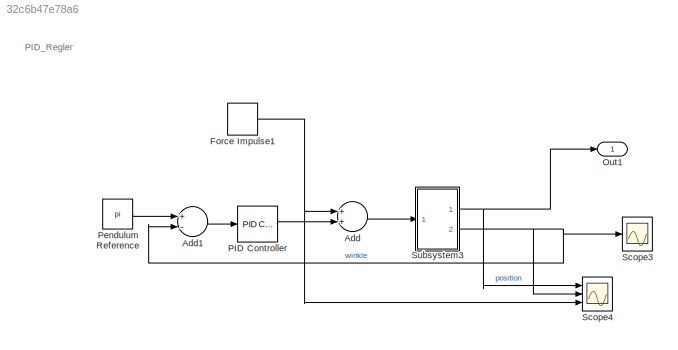
MODEL slx_32c6b47e78a6
KIND model
CONFIG AbsTol = auto
CONFIG EnableMultiTasking = off
CONFIG FixedStep = auto
CONFIG MaxStep = auto
CONFIG MinStep = auto
CONFIG RelTol = 1e-3
CONFIG SampleTimeConstraint = Unconstrained
CONFIG Solver = VariableStepAuto
CONFIG SolverName = VariableStepAuto
CONFIG StartTime = 0.0
CONFIG StopTime = 10.0
BLOCK [Sum] Add
  InputSameDT = off
  OutDataTypeStr = Inherit: Inherit via internal rule
  Ports = [2, 1]
  SaturateOnIntegerOverflow = off
BLOCK [Sum] Add1
  InputSameDT = off
  Inputs = +-
  OutDataTypeStr = Inherit: Inherit via internal rule
  Ports = [2, 1]
  SaturateOnIntegerOverflow = off
BLOCK [DiscretePulseGenerator] Force Impulse1
  Amplitude = 10
  Period = 100
  PhaseDelay = 3
  Ports = [0, 1]
  PulseType = Time based
  PulseWidth = 0.01
BLOCK [Outport] Out1
  IconDisplay = Port number
BLOCK [Reference] PID Controller  REF=simulink/Continuous/PID Controller
  Ports = [1, 1]
  SourceBlock = simulink/Continuous/PID Controller
  SourceProductBaseCode = SL
  SourceProductName = Simulink
  SourceType = PID 1dof
BLOCK [Constant] Pendulum Reference
  Value = pi
BLOCK [Scope] Scope3
  Floating = off
  NumInputPorts = 1
  Ports = [1]
  ScopeSpecificationString = Simulink.scopes.TimeScopeBlockCfg('CurrentConfiguration', extmgr.ConfigurationSet(extmgr.Configuration('Core','General UI',true),extmgr.Configuration('Core','Source UI',true),extmgr.Configuration('Sources','WiredSimulink',true,'DataLoggingVariableName','ScopeData1'),extmgr.Configuration('Visuals','Time Domain',true,'SerializedDisplays',{struct('MinYLimReal','3.14082','MaxYLimReal','3.14847','YLabe...<+1438ch>
BLOCK [Scope] Scope4
  Floating = off
  NumInputPorts = 3
  Ports = [3]
  ScopeSpecificationString = Simulink.scopes.TimeScopeBlockCfg('CurrentConfiguration', extmgr.ConfigurationSet(extmgr.Configuration('Core','General UI',true),extmgr.Configuration('Core','Source UI',true),extmgr.Configuration('Sources','WiredSimulink',true),extmgr.Configuration('Visuals','Time Domain',true,'SerializedDisplays',{struct('MinYLimReal','-15.53182','MaxYLimReal','139.78637','YLabelReal','','MinYLimMag','0.00000','M...<+2885ch>
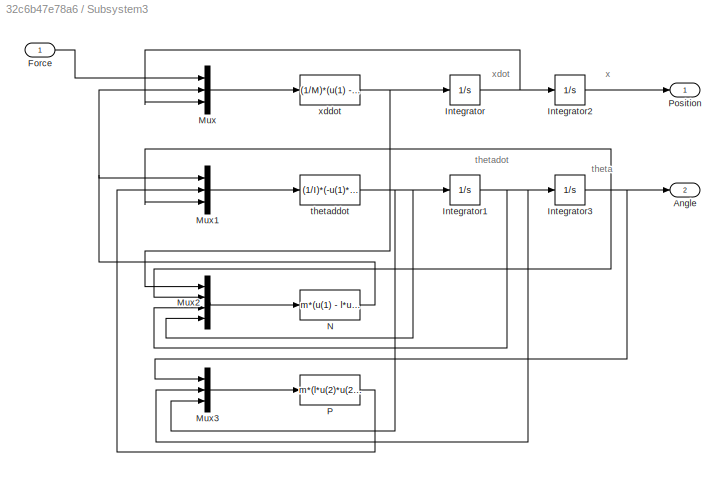
BLOCK [SubSystem] Subsystem3
  Ports = [1, 2]
  RequestExecContextInheritance = off
BLOCK [Outport] Subsystem3/Angle
  IconDisplay = Port number
  Port = 2
BLOCK [Inport] Subsystem3/Force
  IconDisplay = Port number
BLOCK [Integrator] Subsystem3/Integrator
  ContinuousStateAttributes = 'xdot'
  Ports = [1, 1]
BLOCK [Integrator] Subsystem3/Integrator1
  ContinuousStateAttributes = 'thetadot'
  Ports = [1, 1]
BLOCK [Integrator] Subsystem3/Integrator2
  ContinuousStateAttributes = 'x'
  Ports = [1, 1]
BLOCK [Integrator] Subsystem3/Integrator3
  ContinuousStateAttributes = 'theta'
  InitialCondition = pi
  Ports = [1, 1]
BLOCK [Mux] Subsystem3/Mux
  DisplayOption = bar
  Inputs = 3
  Ports = [3, 1]
BLOCK [Mux] Subsystem3/Mux1
  DisplayOption = bar
  Inputs = 3
  Ports = [3, 1]
BLOCK [Mux] Subsystem3/Mux2
  DisplayOption = bar
  Ports = [4, 1]
BLOCK [Mux] Subsystem3/Mux3
  DisplayOption = bar
  Inputs = 3
  Ports = [3, 1]
BLOCK [Fcn] Subsystem3/N
  Expr = m*(u(1) - l*u(3)*u(3)*sin(u(2)) + l*u(4)*cos(u(2)))
BLOCK [Fcn] Subsystem3/P
  Expr = m*(l*u(2)*u(2)*cos(u(1)) + l*u(3)*sin(u(1)) + g)
BLOCK [Outport] Subsystem3/Position
  IconDisplay = Port number
BLOCK [Fcn] Subsystem3/thetaddot
  Expr = (1/I)*(-u(1)*l*cos(u(3)) - u(2)*l*sin(u(3)))
BLOCK [Fcn] Subsystem3/xddot
  Expr = (1/M)*(u(1) - u(2) - b*u(3))
ANNOTATION (root): PID_Regler
ANNOTATION Subsystem3: theta
ANNOTATION Subsystem3: thetadot
ANNOTATION Subsystem3: x
ANNOTATION Subsystem3: xdot
LINE Add1:1 -> PID Controller:1
LINE Add:1 -> Subsystem3:1
NET Force Impulse1:1 -> Add:1, Scope4:3
LINE PID Controller:1 -> Add:2
LINE Pendulum Reference:1 -> Add1:1
LINE Subsystem3/Force:1 -> Subsystem3/Mux:1
NET Subsystem3/Integrator1:1 -> Subsystem3/Integrator3:1, Subsystem3/Mux2:3, Subsystem3/Mux3:2
LINE Subsystem3/Integrator2:1 -> Subsystem3/Position:1
NET Subsystem3/Integrator3:1 -> Subsystem3/Angle:1, Subsystem3/Mux1:3, Subsystem3/Mux2:2, Subsystem3/Mux3:1
NET Subsystem3/Integrator:1 -> Subsystem3/Integrator2:1, Subsystem3/Mux:3
LINE Subsystem3/Mux1:1 -> Subsystem3/thetaddot:1
LINE Subsystem3/Mux2:1 -> Subsystem3/N:1
LINE Subsystem3/Mux3:1 -> Subsystem3/P:1
LINE Subsystem3/Mux:1 -> Subsystem3/xddot:1
NET Subsystem3/N:1 -> Subsystem3/Mux1:1, Subsystem3/Mux:2
LINE Subsystem3/P:1 -> Subsystem3/Mux1:2
NET Subsystem3/thetaddot:1 -> Subsystem3/Integrator1:1, Subsystem3/Mux2:4, Subsystem3/Mux3:3
NET Subsystem3/xddot:1 -> Subsystem3/Integrator:1, Subsystem3/Mux2:1
NET Subsystem3:1 -> Out1:1, Scope4:1
NET Subsystem3:2 -> Add1:2, Scope3:1, Scope4:2
note: NET lines group one-source signal fan-out (src -> all destinations, sorted); 1:1 wires keep LINE
